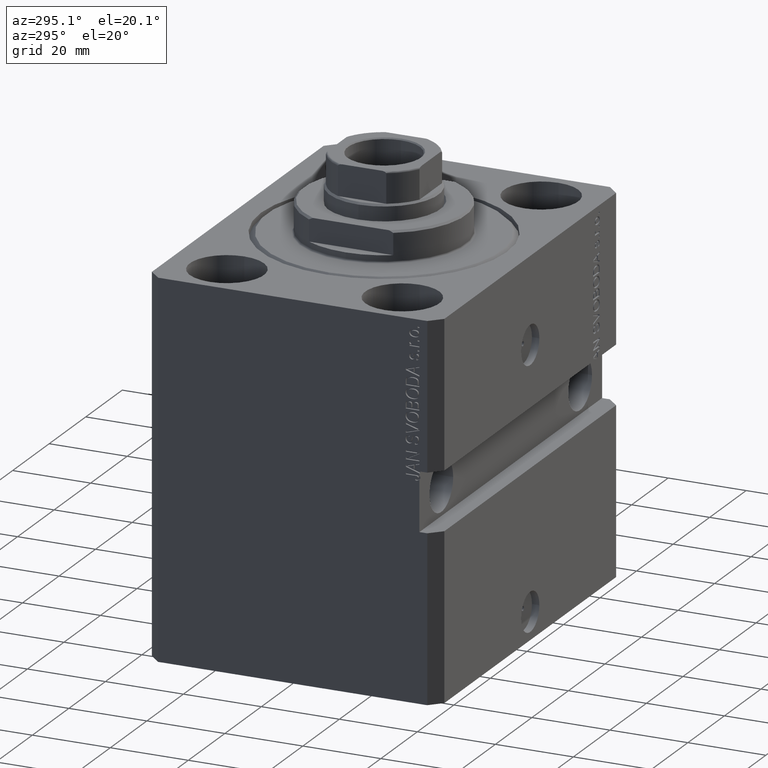
[diagram: clean part render]
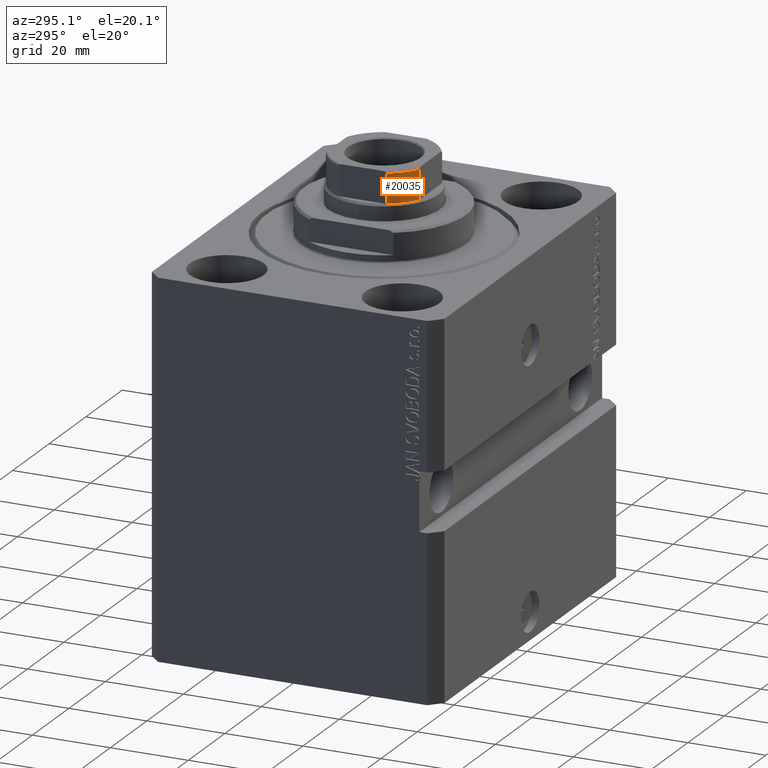
[diagram: same view with one face highlighted and labeled with its STEP entity id]
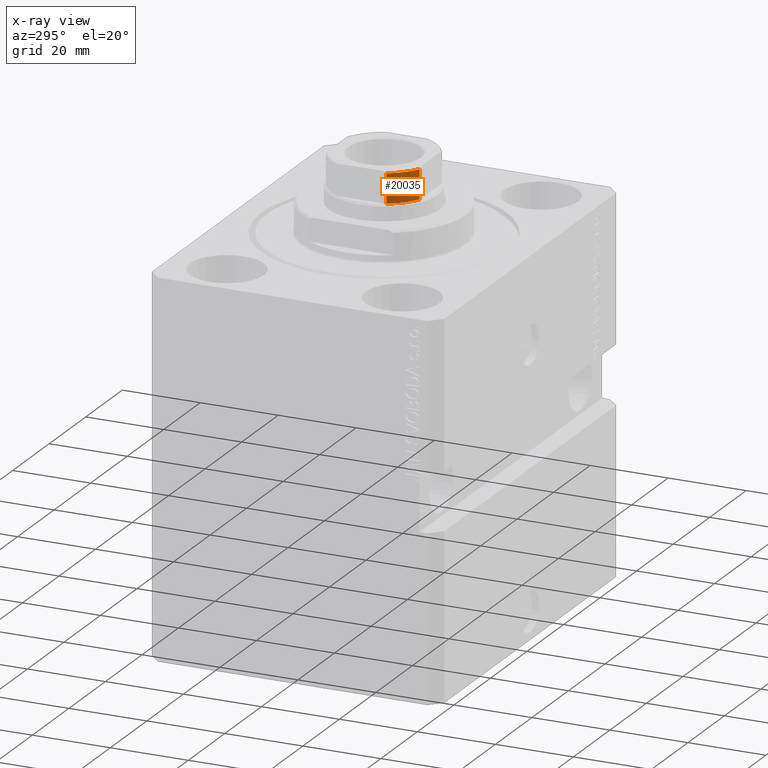
[diagram: x-ray of the same camera — body ghosted, the highlighted face saturated]
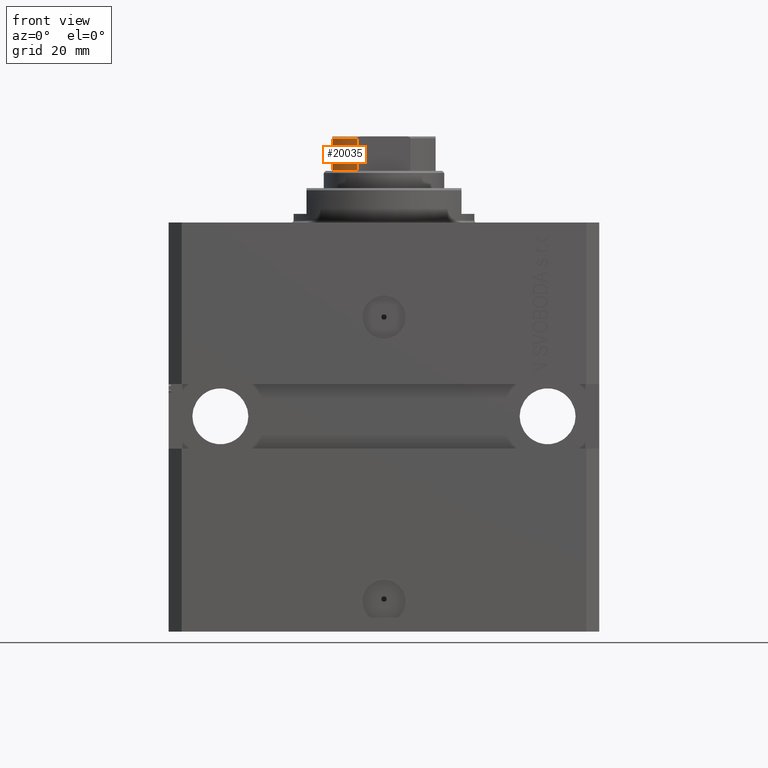
[diagram: same view with one face highlighted and labeled with its STEP entity id]
A machine part, auxiliary view. The second image highlights one B-rep face of the part: STEP entity #20035.
The next image is the same camera in x-ray: the body ghosted, the highlighted face saturated — about 0% of this face is hidden behind the body in this view.
A second angle (front view) of the same face is appended — the face is thin or edge-on in the first view.
In plain terms, the highlighted cylindrical surface (partial cylindrical patch) has radius 13.5 mm, axis along (0, 0, 1).
Its self-contained STEP definition (entity closure, byte-faithful):
#1348 = VERTEX_POINT ( 'NONE', #31462 ) ;
#1562 = ORIENTED_EDGE ( 'NONE', *, *, #15244, .F. ) ;
#1745 = AXIS2_PLACEMENT_3D ( 'NONE', #23254, #44601, #20495 ) ;
#3365 = CARTESIAN_POINT ( 'NONE',  ( -12.00000000000000178, -6.184658438426485993, -0.001000000000001000089 ) ) ;
#3374 = LINE ( 'NONE', #41744, #29932 ) ;
#3518 = ORIENTED_EDGE ( 'NONE', *, *, #16024, .T. ) ;
#3890 = CARTESIAN_POINT ( 'NONE',  ( -12.00000000000000178, -6.184658438426485993, 102.5999999999999943 ) ) ;
#4161 = CIRCLE ( 'NONE', #29569, 13.50000000000000000 ) ;
#4748 = ORIENTED_EDGE ( 'NONE', *, *, #41213, .T. ) ;
#5226 = CARTESIAN_POINT ( 'NONE',  ( 0.000000000000000000, 0.000000000000000000, 102.5999999999999943 ) ) ;
#5448 = DIRECTION ( 'NONE',  ( 1.000000000000000000, 0.000000000000000000, 0.000000000000000000 ) ) ;
#6676 = VECTOR ( 'NONE', #10620, 1000.000000000000000 ) ;
#9536 = VERTEX_POINT ( 'NONE', #19918 ) ;
#10614 = CIRCLE ( 'NONE', #11378, 13.50000000000006395 ) ;
#10620 = DIRECTION ( 'NONE',  ( -0.000000000000000000, -0.000000000000000000, 1.000000000000000000 ) ) ;
#10895 = DIRECTION ( 'NONE',  ( 1.000000000000000000, 0.000000000000000000, 0.000000000000000000 ) ) ;
#11378 = AXIS2_PLACEMENT_3D ( 'NONE', #33938, #27555, #10895 ) ;
#15244 = EDGE_CURVE ( 'NONE', #9536, #21925, #21289, .T. ) ;
#16024 = EDGE_CURVE ( 'NONE', #22260, #1348, #3374, .T. ) ;
#18983 = CARTESIAN_POINT ( 'NONE',  ( -6.184658438426490434, -12.00000000000000000, 95.10000000000006537 ) ) ;
#19918 = CARTESIAN_POINT ( 'NONE',  ( -12.00000000000000178, -6.184658438426485993, 95.10000000000006537 ) ) ;
#20035 = ADVANCED_FACE ( 'NONE', ( #30743 ), #30518, .T. ) ;
#20495 = DIRECTION ( 'NONE',  ( 1.000000000000000000, 0.000000000000000000, 0.000000000000000000 ) ) ;
#21289 = LINE ( 'NONE', #3365, #6676 ) ;
#21925 = VERTEX_POINT ( 'NONE', #3890 ) ;
#22260 = VERTEX_POINT ( 'NONE', #18983 ) ;
#23254 = CARTESIAN_POINT ( 'NONE',  ( 0.000000000000000000, 0.000000000000000000, -0.001000000000001000089 ) ) ;
#27555 = DIRECTION ( 'NONE',  ( 0.000000000000000000, 0.000000000000000000, 1.000000000000000000 ) ) ;
#29569 = AXIS2_PLACEMENT_3D ( 'NONE', #5226, #33177, #5448 ) ;
#29932 = VECTOR ( 'NONE', #37892, 1000.000000000000000 ) ;
#30518 = CYLINDRICAL_SURFACE ( 'NONE', #1745, 13.50000000000000000 ) ;
#30743 = FACE_OUTER_BOUND ( 'NONE', #43345, .T. ) ;
#31462 = CARTESIAN_POINT ( 'NONE',  ( -6.184658438426490434, -12.00000000000000000, 102.5999999999999943 ) ) ;
#33177 = DIRECTION ( 'NONE',  ( 0.000000000000000000, -0.000000000000000000, -1.000000000000000000 ) ) ;
#33938 = CARTESIAN_POINT ( 'NONE',  ( 0.000000000000000000, 0.000000000000000000, 95.09999999999999432 ) ) ;
#36510 = ORIENTED_EDGE ( 'NONE', *, *, #39016, .T. ) ;
#37892 = DIRECTION ( 'NONE',  ( -0.000000000000000000, -0.000000000000000000, 1.000000000000000000 ) ) ;
#39016 = EDGE_CURVE ( 'NONE', #9536, #22260, #10614, .T. ) ;
#41213 = EDGE_CURVE ( 'NONE', #1348, #21925, #4161, .T. ) ;
#41744 = CARTESIAN_POINT ( 'NONE',  ( -6.184658438426490434, -12.00000000000000000, -0.001000000000001000089 ) ) ;
#43345 = EDGE_LOOP ( 'NONE', ( #3518, #4748, #1562, #36510 ) ) ;
#44601 = DIRECTION ( 'NONE',  ( -0.000000000000000000, -0.000000000000000000, 1.000000000000000000 ) ) ;